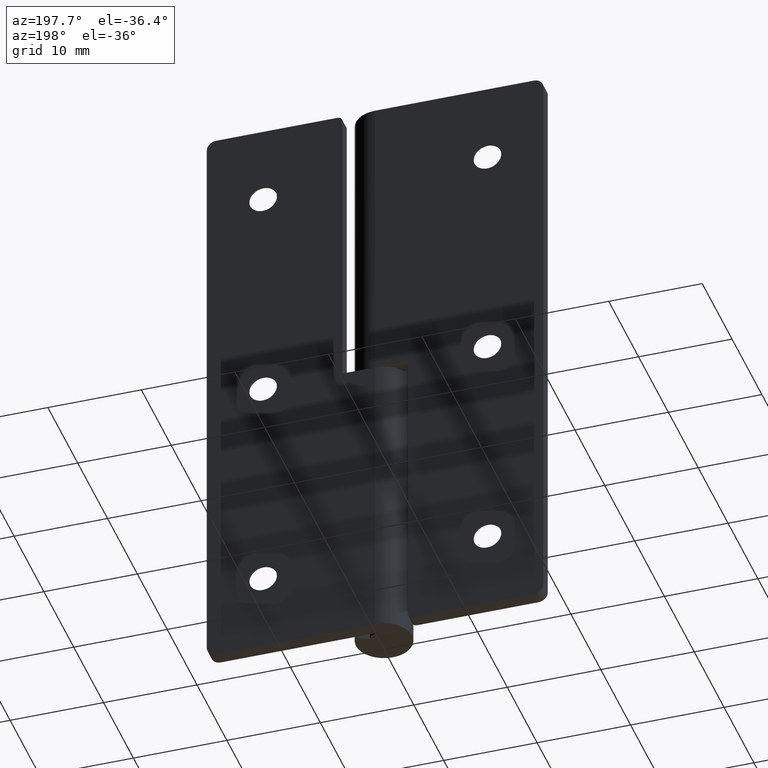
[diagram: clean part render]
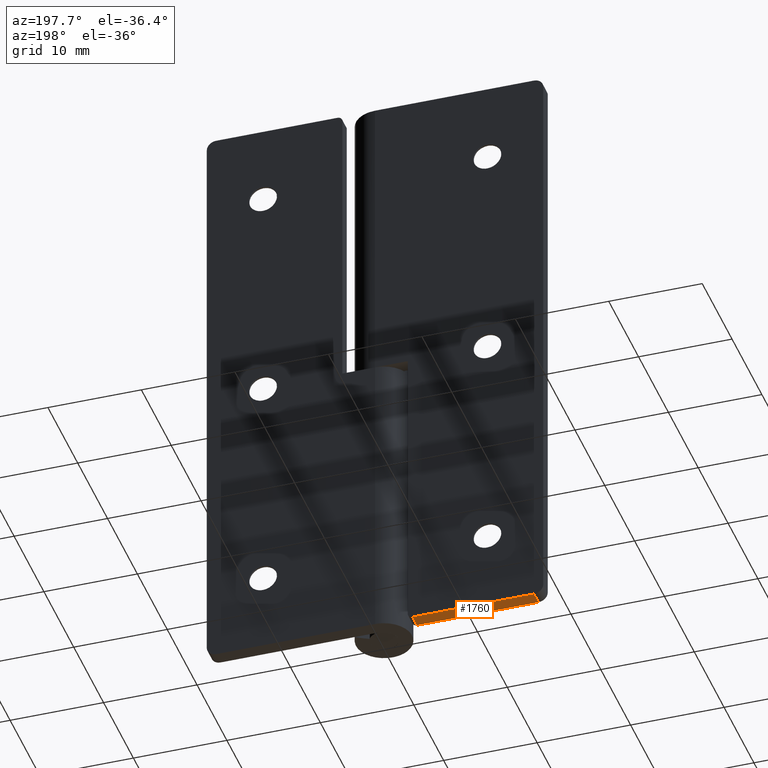
[diagram: same view with one face highlighted and labeled with its STEP entity id]
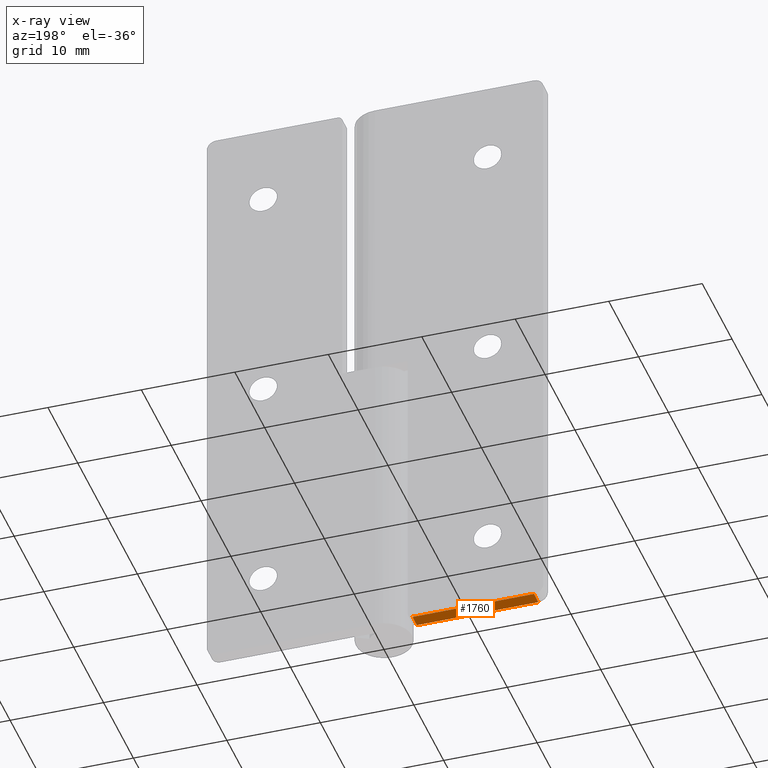
[diagram: x-ray of the same camera — body ghosted, the highlighted face saturated]
A machine part, auxiliary view. The second image highlights one B-rep face of the part: STEP entity #1760.
The next image is the same camera in x-ray: the body ghosted, the highlighted face saturated — about 0% of this face is hidden behind the body in this view.
In plain terms, the highlighted face is a freeform B-spline surface patch.
Its self-contained STEP definition (entity closure, byte-faithful):
#1360=CARTESIAN_POINT('',(-4.0,1.500000000000055,0.0));
#1361=VERTEX_POINT('',#1360);
#1377=CARTESIAN_POINT('',(-4.0,3.0,0.0));
#1378=VERTEX_POINT('',#1377);
#1379=CARTESIAN_POINT('',(-4.0,3.0,0.0));
#1380=CARTESIAN_POINT('',(-4.0,1.500000000000055,0.0));
#1381=QUASI_UNIFORM_CURVE('',1,(#1379,#1380),.UNSPECIFIED.,.F.,.U.);
#1382=EDGE_CURVE('',#1378,#1361,#1381,.T.);
#1562=CARTESIAN_POINT('',(-17.0,1.500000000000055,0.0));
#1563=VERTEX_POINT('',#1562);
#1584=CARTESIAN_POINT('',(-17.0,3.0,0.0));
#1585=VERTEX_POINT('',#1584);
#1599=CARTESIAN_POINT('',(-17.0,3.0,0.0));
#1600=CARTESIAN_POINT('',(-17.0,1.500000000000055,0.0));
#1601=QUASI_UNIFORM_CURVE('',1,(#1599,#1600),.UNSPECIFIED.,.F.,.U.);
#1602=EDGE_CURVE('',#1585,#1563,#1601,.T.);
#1741=CARTESIAN_POINT('',(-17.649349974803481,1.425075002907349,0.0));
#1742=CARTESIAN_POINT('',(-3.350649676509351,1.425075002907349,0.0));
#1743=CARTESIAN_POINT('',(-17.649349974803481,3.074925037325842,0.0));
#1744=CARTESIAN_POINT('',(-3.350649676509351,3.074925037325842,0.0));
#1745=B_SPLINE_SURFACE_WITH_KNOTS('',1,1,((#1741,#1743),(#1742,#1744)),.UNSPECIFIED.,.F.,.F.,.U.,(2,2),(2,2),(0.0,14.298700298294129),(0.041708334948495,0.958291687403247),.UNSPECIFIED.);
#1746=ORIENTED_EDGE('',*,*,#1382,.T.);
#1747=CARTESIAN_POINT('',(-4.0,1.500000000000055,0.0));
#1748=CARTESIAN_POINT('',(-17.0,1.500000000000055,0.0));
#1749=QUASI_UNIFORM_CURVE('',1,(#1747,#1748),.UNSPECIFIED.,.F.,.U.);
#1750=EDGE_CURVE('',#1361,#1563,#1749,.T.);
#1751=ORIENTED_EDGE('',*,*,#1750,.T.);
#1752=ORIENTED_EDGE('',*,*,#1602,.F.);
#1753=CARTESIAN_POINT('',(-17.0,3.0,0.0));
#1754=CARTESIAN_POINT('',(-4.0,3.0,0.0));
#1755=QUASI_UNIFORM_CURVE('',1,(#1753,#1754),.UNSPECIFIED.,.F.,.U.);
#1756=EDGE_CURVE('',#1585,#1378,#1755,.T.);
#1757=ORIENTED_EDGE('',*,*,#1756,.T.);
#1758=EDGE_LOOP('',(#1746,#1751,#1752,#1757));
#1759=FACE_OUTER_BOUND('',#1758,.T.);
#1760=ADVANCED_FACE('',(#1759),#1745,.F.);